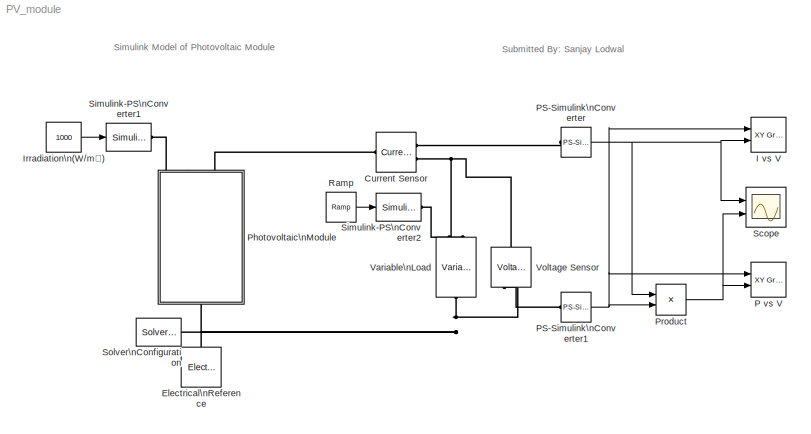
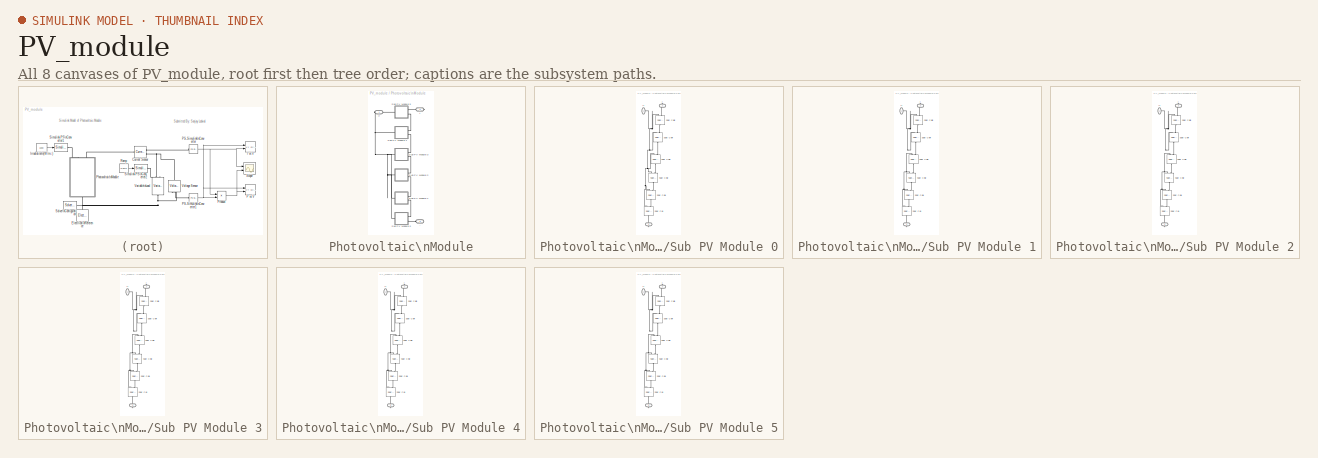
[diagram: thumbnail index - all 8 canvases of the model, root first then tree order]
MODEL PV_module
KIND model
BLOCK [Reference] Current Sensor  REF=fl_lib/Electrical/Electrical Sensors/Current Sensor
  ClassName = current
  ComponentPath = foundation.electrical.sensors.current
  ComponentVariantNames = current
  ComponentVariants = foundation.electrical.sensors.current
  LocalVarDescs = |i1|v1
  LocalVarLogging = [0 0]
  LocalVarNames = |i1|v1
  Ports = [0, 0, 0, 0, 0, 1, 2]
  SID = 226
  SchemaVersion = 1
  SourceBlock = fl_lib/Electrical/Electrical Sensors/Current Sensor
  SourceFile = foundation.electrical.sensors.current
  SourceProductBaseCode = SS
  SourceProductName = Simscape
  SourceType = Current Sensor
  i1_Log = off
  v1_Log = off
BLOCK [Reference] Electrical\nReference  REF=fl_lib/Electrical/Electrical Elements/Electrical Reference
  ClassName = reference
  ComponentPath = foundation.electrical.elements.reference
  ComponentVariantNames = reference
  ComponentVariants = foundation.electrical.elements.reference
  LocalVarDescs = |i
  LocalVarLogging = 0
  LocalVarNames = |i
  Ports = [0, 0, 0, 0, 0, 1]
  SID = 11
  SchemaVersion = 1
  SourceBlock = fl_lib/Electrical/Electrical Elements/Electrical Reference
  SourceFile = foundation.electrical.elements.reference
  SourceProductBaseCode = SS
  SourceProductName = Simscape
  SourceType = Electrical Reference
  i_Log = off
BLOCK [Reference] I vs V  REF=simulink/Sinks/XY Graph
  Ports = [2]
  SID = 365
  SourceBlock = simulink/Sinks/XY Graph
  SourceProductBaseCode = SL
  SourceProductName = Simulink
  SourceType = XY scope.
  st = -1
  xmax = 25
  xmin = 0
  ymax = 9
  ymin = 0
BLOCK [Constant] Irradiation\n(W//m²)
  SID = 222
  Value = 1000
BLOCK [Reference] P vs V  REF=simulink/Sinks/XY Graph
  Ports = [2]
  SID = 366
  SourceBlock = simulink/Sinks/XY Graph
  SourceProductBaseCode = SL
  SourceProductName = Simulink
  SourceType = XY scope.
  st = -1
  xmax = 25
  xmin = 0
  ymax = 165
  ymin = 0
BLOCK [Reference] PS-Simulink\nConverter  REF=nesl_utility/PS-Simulink\nConverter
  AffineConversion = off
  Frequencies = []
  LeftPortType = input
  PhysicalDomain = network_engine_domain
  Ports = [0, 1, 0, 0, 0, 1]
  PseudoPeriodic = off
  RightPortType = output
  SID = 3
  SourceBlock = nesl_utility/PS-Simulink\nConverter
  SourceProductBaseCode = SS
  SourceProductName = Simscape
  SourceType = PS-Simulink\nConverter
  SubClassName = ps_output
  Unit = 1
BLOCK [Reference] PS-Simulink\nConverter1  REF=nesl_utility/PS-Simulink\nConverter
  AffineConversion = off
  Frequencies = []
  LeftPortType = input
  PhysicalDomain = network_engine_domain
  Ports = [0, 1, 0, 0, 0, 1]
  PseudoPeriodic = off
  RightPortType = output
  SID = 228
  SourceBlock = nesl_utility/PS-Simulink\nConverter
  SourceProductBaseCode = SS
  SourceProductName = Simscape
  SourceType = PS-Simulink\nConverter
  SubClassName = ps_output
  Unit = 1
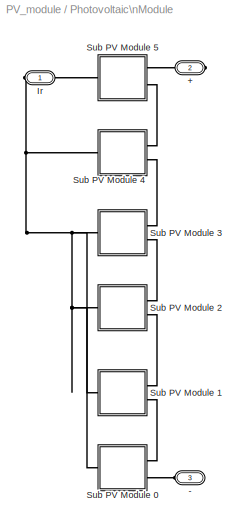
BLOCK [SubSystem] Photovoltaic\nModule
  Ports = [0, 0, 0, 0, 0, 1, 2]
  RequestExecContextInheritance = off
  SID = 234
BLOCK [PMIOPort] Photovoltaic\nModule/+
  Port = 2
  SID = 295
  Side = Right
BLOCK [PMIOPort] Photovoltaic\nModule/-
  Port = 3
  SID = 297
  Side = Left
BLOCK [PMIOPort] Photovoltaic\nModule/Ir
  SID = 296
  Side = Right
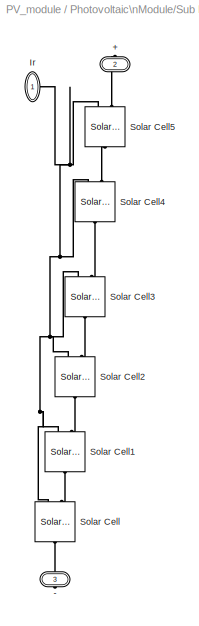
BLOCK [SubSystem] Photovoltaic\nModule/Sub PV Module 0
  Ports = [0, 0, 0, 0, 0, 1, 2]
  RequestExecContextInheritance = off
  SID = 298
BLOCK [PMIOPort] Photovoltaic\nModule/Sub PV Module 0/+
  Port = 2
  SID = 306
  Side = Right
BLOCK [PMIOPort] Photovoltaic\nModule/Sub PV Module 0/-
  Port = 3
  SID = 307
  Side = Right
BLOCK [PMIOPort] Photovoltaic\nModule/Sub PV Module 0/Ir
  SID = 305
  Side = Left
BLOCK [Reference] Photovoltaic\nModule/Sub PV Module 0/Solar Cell  REF=elec_lib/Sources/Solar Cell
  ClassName = Simscape variant
  ComponentPath = elec.sources.solar_cell
  ComponentVariantNames = No thermal port, Show thermal port
  ComponentVariants = elec.sources.solar_cell, elec.sources.solar_cell_thermal
  EG = 1.11
  EG_unit = eV
  Iph = 7.34
  Iph_unit = A
  Ir0 = Ir0
  Ir0_unit = W/m^2
  Is = 1e-6
  Is2 = 0
  Is2_unit = A
  Is_unit = A
  Isc = Isc
  Isc_unit = A
  LocalVarLogging = []
  N2 = 2
  N2_unit = 1
  Ports = [0, 0, 0, 0, 0, 2, 1]
  Rp = Inf
  Rp_unit = Ohm
  Rs = Rs/36
  Rs_unit = Ohm
  SID = 299
  SchemaVersion = 1
  SourceBlock = elec_lib/Sources/Solar Cell
  SourceFile = elec.sources.solar_cell
  SourceProductBaseCode = PS
  SourceProductName = Simscape Electrical
  SourceType = Solar Cell
  TFIXED = 25
  TFIXED_unit = C
  TIPH1 = 0
  TIPH1_unit = 1/K
  TRP1 = 0
  TRP1_unit = 1
  TRS1 = 0
  TRS1_unit = 1
  TXIS1 = 3
  TXIS1_unit = 1
  TXIS2 = 3
  TXIS2_unit = 1
  Tmeas = 25
  Tmeas_unit = C
  Voc = Voc/36
  Voc_unit = V
  ec = n
  ec_unit = 1
  initial_temperature = 25
  initial_temperature_unit = C
  prm = 1
  prm_unit = 1
  thermal_mass = 100
  thermal_mass_unit = J/K
BLOCK [Reference] Photovoltaic\nModule/Sub PV Module 0/Solar Cell1  REF=elec_lib/Sources/Solar Cell
  ClassName = Simscape variant
  ComponentPath = elec.sources.solar_cell
  ComponentVariantNames = No thermal port, Show thermal port
  ComponentVariants = elec.sources.solar_cell, elec.sources.solar_cell_thermal
  EG = 1.11
  EG_unit = eV
  Iph = 7.34
  Iph_unit = A
  Ir0 = Ir0
  Ir0_unit = W/m^2
  Is = 1e-6
  Is2 = 0
  Is2_unit = A
  Is_unit = A
  Isc = Isc
  Isc_unit = A
  LocalVarLogging = []
  N2 = 2
  N2_unit = 1
  Ports = [0, 0, 0, 0, 0, 2, 1]
  Rp = Inf
  Rp_unit = Ohm
  Rs = Rs/36
  Rs_unit = Ohm
  SID = 308
  SchemaVersion = 1
  SourceBlock = elec_lib/Sources/Solar Cell
  SourceFile = elec.sources.solar_cell
  SourceProductBaseCode = PS
  SourceProductName = Simscape Electrical
  SourceType = Solar Cell
  TFIXED = 25
  TFIXED_unit = C
  TIPH1 = 0
  TIPH1_unit = 1/K
  TRP1 = 0
  TRP1_unit = 1
  TRS1 = 0
  TRS1_unit = 1
  TXIS1 = 3
  TXIS1_unit = 1
  TXIS2 = 3
  TXIS2_unit = 1
  Tmeas = 25
  Tmeas_unit = C
  Voc = Voc/36
  Voc_unit = V
  ec = n
  ec_unit = 1
  initial_temperature = 25
  initial_temperature_unit = C
  prm = 1
  prm_unit = 1
  thermal_mass = 100
  thermal_mass_unit = J/K
BLOCK [Reference] Photovoltaic\nModule/Sub PV Module 0/Solar Cell2  REF=elec_lib/Sources/Solar Cell
  ClassName = Simscape variant
  ComponentPath = elec.sources.solar_cell
  ComponentVariantNames = No thermal port, Show thermal port
  ComponentVariants = elec.sources.solar_cell, elec.sources.solar_cell_thermal
  EG = 1.11
  EG_unit = eV
  Iph = 7.34
  Iph_unit = A
  Ir0 = Ir0
  Ir0_unit = W/m^2
  Is = 1e-6
  Is2 = 0
  Is2_unit = A
  Is_unit = A
  Isc = Isc
  Isc_unit = A
  LocalVarLogging = []
  N2 = 2
  N2_unit = 1
  Ports = [0, 0, 0, 0, 0, 2, 1]
  Rp = Inf
  Rp_unit = Ohm
  Rs = Rs/36
  Rs_unit = Ohm
  SID = 310
  SchemaVersion = 1
  SourceBlock = elec_lib/Sources/Solar Cell
  SourceFile = elec.sources.solar_cell
  SourceProductBaseCode = PS
  SourceProductName = Simscape Electrical
  SourceType = Solar Cell
  TFIXED = 25
  TFIXED_unit = C
  TIPH1 = 0
  TIPH1_unit = 1/K
  TRP1 = 0
  TRP1_unit = 1
  TRS1 = 0
  TRS1_unit = 1
  TXIS1 = 3
  TXIS1_unit = 1
  TXIS2 = 3
  TXIS2_unit = 1
  Tmeas = 25
  Tmeas_unit = C
  Voc = Voc/36
  Voc_unit = V
  ec = n
  ec_unit = 1
  initial_temperature = 25
  initial_temperature_unit = C
  prm = 1
  prm_unit = 1
  thermal_mass = 100
  thermal_mass_unit = J/K
BLOCK [Reference] Photovoltaic\nModule/Sub PV Module 0/Solar Cell3  REF=elec_lib/Sources/Solar Cell
  ClassName = Simscape variant
  ComponentPath = elec.sources.solar_cell
  ComponentVariantNames = No thermal port, Show thermal port
  ComponentVariants = elec.sources.solar_cell, elec.sources.solar_cell_thermal
  EG = 1.11
  EG_unit = eV
  Iph = 7.34
  Iph_unit = A
  Ir0 = Ir0
  Ir0_unit = W/m^2
  Is = 1e-6
  Is2 = 0
  Is2_unit = A
  Is_unit = A
  Isc = Isc
  Isc_unit = A
  LocalVarLogging = []
  N2 = 2
  N2_unit = 1
  Ports = [0, 0, 0, 0, 0, 2, 1]
  Rp = Inf
  Rp_unit = Ohm
  Rs = Rs/36
  Rs_unit = Ohm
  SID = 311
  SchemaVersion = 1
  SourceBlock = elec_lib/Sources/Solar Cell
  SourceFile = elec.sources.solar_cell
  SourceProductBaseCode = PS
  SourceProductName = Simscape Electrical
  SourceType = Solar Cell
  TFIXED = 25
  TFIXED_unit = C
  TIPH1 = 0
  TIPH1_unit = 1/K
  TRP1 = 0
  TRP1_unit = 1
  TRS1 = 0
  TRS1_unit = 1
  TXIS1 = 3
  TXIS1_unit = 1
  TXIS2 = 3
  TXIS2_unit = 1
  Tmeas = 25
  Tmeas_unit = C
  Voc = Voc/36
  Voc_unit = V
  ec = n
  ec_unit = 1
  initial_temperature = 25
  initial_temperature_unit = C
  prm = 1
  prm_unit = 1
  thermal_mass = 100
  thermal_mass_unit = J/K
BLOCK [Reference] Photovoltaic\nModule/Sub PV Module 0/Solar Cell4  REF=elec_lib/Sources/Solar Cell
  ClassName = Simscape variant
  ComponentPath = elec.sources.solar_cell
  ComponentVariantNames = No thermal port, Show thermal port
  ComponentVariants = elec.sources.solar_cell, elec.sources.solar_cell_thermal
  EG = 1.11
  EG_unit = eV
  Iph = 7.34
  Iph_unit = A
  Ir0 = Ir0
  Ir0_unit = W/m^2
  Is = 1e-6
  Is2 = 0
  Is2_unit = A
  Is_unit = A
  Isc = Isc
  Isc_unit = A
  LocalVarLogging = []
  N2 = 2
  N2_unit = 1
  Ports = [0, 0, 0, 0, 0, 2, 1]
  Rp = Inf
  Rp_unit = Ohm
  Rs = Rs/36
  Rs_unit = Ohm
  SID = 312
  SchemaVersion = 1
  SourceBlock = elec_lib/Sources/Solar Cell
  SourceFile = elec.sources.solar_cell
  SourceProductBaseCode = PS
  SourceProductName = Simscape Electrical
  SourceType = Solar Cell
  TFIXED = 25
  TFIXED_unit = C
  TIPH1 = 0
  TIPH1_unit = 1/K
  TRP1 = 0
  TRP1_unit = 1
  TRS1 = 0
  TRS1_unit = 1
  TXIS1 = 3
  TXIS1_unit = 1
  TXIS2 = 3
  TXIS2_unit = 1
  Tmeas = 25
  Tmeas_unit = C
  Voc = Voc/36
  Voc_unit = V
  ec = n
  ec_unit = 1
  initial_temperature = 25
  initial_temperature_unit = C
  prm = 1
  prm_unit = 1
  thermal_mass = 100
  thermal_mass_unit = J/K
BLOCK [Reference] Photovoltaic\nModule/Sub PV Module 0/Solar Cell5  REF=elec_lib/Sources/Solar Cell
  ClassName = Simscape variant
  ComponentPath = elec.sources.solar_cell
  ComponentVariantNames = No thermal port, Show thermal port
  ComponentVariants = elec.sources.solar_cell, elec.sources.solar_cell_thermal
  EG = 1.11
  EG_unit = eV
  Iph = 7.34
  Iph_unit = A
  Ir0 = Ir0
  Ir0_unit = W/m^2
  Is = 1e-6
  Is2 = 0
  Is2_unit = A
  Is_unit = A
  Isc = Isc
  Isc_unit = A
  LocalVarLogging = []
  N2 = 2
  N2_unit = 1
  Ports = [0, 0, 0, 0, 0, 2, 1]
  Rp = Inf
  Rp_unit = Ohm
  Rs = Rs/36
  Rs_unit = Ohm
  SID = 313
  SchemaVersion = 1
  SourceBlock = elec_lib/Sources/Solar Cell
  SourceFile = elec.sources.solar_cell
  SourceProductBaseCode = PS
  SourceProductName = Simscape Electrical
  SourceType = Solar Cell
  TFIXED = 25
  TFIXED_unit = C
  TIPH1 = 0
  TIPH1_unit = 1/K
  TRP1 = 0
  TRP1_unit = 1
  TRS1 = 0
  TRS1_unit = 1
  TXIS1 = 3
  TXIS1_unit = 1
  TXIS2 = 3
  TXIS2_unit = 1
  Tmeas = 25
  Tmeas_unit = C
  Voc = Voc/36
  Voc_unit = V
  ec = n
  ec_unit = 1
  initial_temperature = 25
  initial_temperature_unit = C
  prm = 1
  prm_unit = 1
  thermal_mass = 100
  thermal_mass_unit = J/K
BLOCK [SubSystem] Photovoltaic\nModule/Sub PV Module 1
  Ports = [0, 0, 0, 0, 0, 1, 2]
  RequestExecContextInheritance = off
  SID = 315
BLOCK [PMIOPort] Photovoltaic\nModule/Sub PV Module 1/+
  Port = 2
  SID = 323
  Side = Right
BLOCK [PMIOPort] Photovoltaic\nModule/Sub PV Module 1/-
  Port = 3
  SID = 324
  Side = Right
BLOCK [PMIOPort] Photovoltaic\nModule/Sub PV Module 1/Ir
  SID = 322
  Side = Left
BLOCK [Reference] Photovoltaic\nModule/Sub PV Module 1/Solar Cell  REF=elec_lib/Sources/Solar Cell
  ClassName = Simscape variant
  ComponentPath = elec.sources.solar_cell
  ComponentVariantNames = No thermal port, Show thermal port
  ComponentVariants = elec.sources.solar_cell, elec.sources.solar_cell_thermal
  EG = 1.11
  EG_unit = eV
  Iph = 7.34
  Iph_unit = A
  Ir0 = Ir0
  Ir0_unit = W/m^2
  Is = 1e-6
  Is2 = 0
  Is2_unit = A
  Is_unit = A
  Isc = Isc
  Isc_unit = A
  LocalVarLogging = []
  N2 = 2
  N2_unit = 1
  Ports = [0, 0, 0, 0, 0, 2, 1]
  Rp = Inf
  Rp_unit = Ohm
  Rs = Rs/36
  Rs_unit = Ohm
  SID = 316
  SchemaVersion = 1
  SourceBlock = elec_lib/Sources/Solar Cell
  SourceFile = elec.sources.solar_cell
  SourceProductBaseCode = PS
  SourceProductName = Simscape Electrical
  SourceType = Solar Cell
  TFIXED = 25
  TFIXED_unit = C
  TIPH1 = 0
  TIPH1_unit = 1/K
  TRP1 = 0
  TRP1_unit = 1
  TRS1 = 0
  TRS1_unit = 1
  TXIS1 = 3
  TXIS1_unit = 1
  TXIS2 = 3
  TXIS2_unit = 1
  Tmeas = 25
  Tmeas_unit = C
  Voc = Voc/36
  Voc_unit = V
  ec = n
  ec_unit = 1
  initial_temperature = 25
  initial_temperature_unit = C
  prm = 1
  prm_unit = 1
  thermal_mass = 100
  thermal_mass_unit = J/K
BLOCK [Reference] Photovoltaic\nModule/Sub PV Module 1/Solar Cell1  REF=elec_lib/Sources/Solar Cell
  ClassName = Simscape variant
  ComponentPath = elec.sources.solar_cell
  ComponentVariantNames = No thermal port, Show thermal port
  ComponentVariants = elec.sources.solar_cell, elec.sources.solar_cell_thermal
  EG = 1.11
  EG_unit = eV
  Iph = 7.34
  Iph_unit = A
  Ir0 = Ir0
  Ir0_unit = W/m^2
  Is = 1e-6
  Is2 = 0
  Is2_unit = A
  Is_unit = A
  Isc = Isc
  Isc_unit = A
  LocalVarLogging = []
  N2 = 2
  N2_unit = 1
  Ports = [0, 0, 0, 0, 0, 2, 1]
  Rp = Inf
  Rp_unit = Ohm
  Rs = Rs/36
  Rs_unit = Ohm
  SID = 317
  SchemaVersion = 1
  SourceBlock = elec_lib/Sources/Solar Cell
  SourceFile = elec.sources.solar_cell
  SourceProductBaseCode = PS
  SourceProductName = Simscape Electrical
  SourceType = Solar Cell
  TFIXED = 25
  TFIXED_unit = C
  TIPH1 = 0
  TIPH1_unit = 1/K
  TRP1 = 0
  TRP1_unit = 1
  TRS1 = 0
  TRS1_unit = 1
  TXIS1 = 3
  TXIS1_unit = 1
  TXIS2 = 3
  TXIS2_unit = 1
  Tmeas = 25
  Tmeas_unit = C
  Voc = Voc/36
  Voc_unit = V
  ec = n
  ec_unit = 1
  initial_temperature = 25
  initial_temperature_unit = C
  prm = 1
  prm_unit = 1
  thermal_mass = 100
  thermal_mass_unit = J/K
BLOCK [Reference] Photovoltaic\nModule/Sub PV Module 1/Solar Cell2  REF=elec_lib/Sources/Solar Cell
  ClassName = Simscape variant
  ComponentPath = elec.sources.solar_cell
  ComponentVariantNames = No thermal port, Show thermal port
  ComponentVariants = elec.sources.solar_cell, elec.sources.solar_cell_thermal
  EG = 1.11
  EG_unit = eV
  Iph = 7.34
  Iph_unit = A
  Ir0 = Ir0
  Ir0_unit = W/m^2
  Is = 1e-6
  Is2 = 0
  Is2_unit = A
  Is_unit = A
  Isc = Isc
  Isc_unit = A
  LocalVarLogging = []
  N2 = 2
  N2_unit = 1
  Ports = [0, 0, 0, 0, 0, 2, 1]
  Rp = Inf
  Rp_unit = Ohm
  Rs = Rs/36
  Rs_unit = Ohm
  SID = 318
  SchemaVersion = 1
  SourceBlock = elec_lib/Sources/Solar Cell
  SourceFile = elec.sources.solar_cell
  SourceProductBaseCode = PS
  SourceProductName = Simscape Electrical
  SourceType = Solar Cell
  TFIXED = 25
  TFIXED_unit = C
  TIPH1 = 0
  TIPH1_unit = 1/K
  TRP1 = 0
  TRP1_unit = 1
  TRS1 = 0
  TRS1_unit = 1
  TXIS1 = 3
  TXIS1_unit = 1
  TXIS2 = 3
  TXIS2_unit = 1
  Tmeas = 25
  Tmeas_unit = C
  Voc = Voc/36
  Voc_unit = V
  ec = n
  ec_unit = 1
  initial_temperature = 25
  initial_temperature_unit = C
  prm = 1
  prm_unit = 1
  thermal_mass = 100
  thermal_mass_unit = J/K
BLOCK [Reference] Photovoltaic\nModule/Sub PV Module 1/Solar Cell3  REF=elec_lib/Sources/Solar Cell
  ClassName = Simscape variant
  ComponentPath = elec.sources.solar_cell
  ComponentVariantNames = No thermal port, Show thermal port
  ComponentVariants = elec.sources.solar_cell, elec.sources.solar_cell_thermal
  EG = 1.11
  EG_unit = eV
  Iph = 7.34
  Iph_unit = A
  Ir0 = Ir0
  Ir0_unit = W/m^2
  Is = 1e-6
  Is2 = 0
  Is2_unit = A
  Is_unit = A
  Isc = Isc
  Isc_unit = A
  LocalVarLogging = []
  N2 = 2
  N2_unit = 1
  Ports = [0, 0, 0, 0, 0, 2, 1]
  Rp = Inf
  Rp_unit = Ohm
  Rs = Rs/36
  Rs_unit = Ohm
  SID = 319
  SchemaVersion = 1
  SourceBlock = elec_lib/Sources/Solar Cell
  SourceFile = elec.sources.solar_cell
  SourceProductBaseCode = PS
  SourceProductName = Simscape Electrical
  SourceType = Solar Cell
  TFIXED = 25
  TFIXED_unit = C
  TIPH1 = 0
  TIPH1_unit = 1/K
  TRP1 = 0
  TRP1_unit = 1
  TRS1 = 0
  TRS1_unit = 1
  TXIS1 = 3
  TXIS1_unit = 1
  TXIS2 = 3
  TXIS2_unit = 1
  Tmeas = 25
  Tmeas_unit = C
  Voc = Voc/36
  Voc_unit = V
  ec = n
  ec_unit = 1
  initial_temperature = 25
  initial_temperature_unit = C
  prm = 1
  prm_unit = 1
  thermal_mass = 100
  thermal_mass_unit = J/K
BLOCK [Reference] Photovoltaic\nModule/Sub PV Module 1/Solar Cell4  REF=elec_lib/Sources/Solar Cell
  ClassName = Simscape variant
  ComponentPath = elec.sources.solar_cell
  ComponentVariantNames = No thermal port, Show thermal port
  ComponentVariants = elec.sources.solar_cell, elec.sources.solar_cell_thermal
  EG = 1.11
  EG_unit = eV
  Iph = 7.34
  Iph_unit = A
  Ir0 = Ir0
  Ir0_unit = W/m^2
  Is = 1e-6
  Is2 = 0
  Is2_unit = A
  Is_unit = A
  Isc = Isc
  Isc_unit = A
  LocalVarLogging = []
  N2 = 2
  N2_unit = 1
  Ports = [0, 0, 0, 0, 0, 2, 1]
  Rp = Inf
  Rp_unit = Ohm
  Rs = Rs/36
  Rs_unit = Ohm
  SID = 320
  SchemaVersion = 1
  SourceBlock = elec_lib/Sources/Solar Cell
  SourceFile = elec.sources.solar_cell
  SourceProductBaseCode = PS
  SourceProductName = Simscape Electrical
  SourceType = Solar Cell
  TFIXED = 25
  TFIXED_unit = C
  TIPH1 = 0
  TIPH1_unit = 1/K
  TRP1 = 0
  TRP1_unit = 1
  TRS1 = 0
  TRS1_unit = 1
  TXIS1 = 3
  TXIS1_unit = 1
  TXIS2 = 3
  TXIS2_unit = 1
  Tmeas = 25
  Tmeas_unit = C
  Voc = Voc/36
  Voc_unit = V
  ec = n
  ec_unit = 1
  initial_temperature = 25
  initial_temperature_unit = C
  prm = 1
  prm_unit = 1
  thermal_mass = 100
  thermal_mass_unit = J/K
BLOCK [Reference] Photovoltaic\nModule/Sub PV Module 1/Solar Cell5  REF=elec_lib/Sources/Solar Cell
  ClassName = Simscape variant
  ComponentPath = elec.sources.solar_cell
  ComponentVariantNames = No thermal port, Show thermal port
  ComponentVariants = elec.sources.solar_cell, elec.sources.solar_cell_thermal
  EG = 1.11
  EG_unit = eV
  Iph = 7.34
  Iph_unit = A
  Ir0 = Ir0
  Ir0_unit = W/m^2
  Is = 1e-6
  Is2 = 0
  Is2_unit = A
  Is_unit = A
  Isc = Isc
  Isc_unit = A
  LocalVarLogging = []
  N2 = 2
  N2_unit = 1
  Ports = [0, 0, 0, 0, 0, 2, 1]
  Rp = Inf
  Rp_unit = Ohm
  Rs = Rs/36
  Rs_unit = Ohm
  SID = 321
  SchemaVersion = 1
  SourceBlock = elec_lib/Sources/Solar Cell
  SourceFile = elec.sources.solar_cell
  SourceProductBaseCode = PS
  SourceProductName = Simscape Electrical
  SourceType = Solar Cell
  TFIXED = 25
  TFIXED_unit = C
  TIPH1 = 0
  TIPH1_unit = 1/K
  TRP1 = 0
  TRP1_unit = 1
  TRS1 = 0
  TRS1_unit = 1
  TXIS1 = 3
  TXIS1_unit = 1
  TXIS2 = 3
  TXIS2_unit = 1
  Tmeas = 25
  Tmeas_unit = C
  Voc = Voc/36
  Voc_unit = V
  ec = n
  ec_unit = 1
  initial_temperature = 25
  initial_temperature_unit = C
  prm = 1
  prm_unit = 1
  thermal_mass = 100
  thermal_mass_unit = J/K
BLOCK [SubSystem] Photovoltaic\nModule/Sub PV Module 2
  Ports = [0, 0, 0, 0, 0, 1, 2]
  RequestExecContextInheritance = off
  SID = 325
BLOCK [PMIOPort] Photovoltaic\nModule/Sub PV Module 2/+
  Port = 2
  SID = 333
  Side = Right
BLOCK [PMIOPort] Photovoltaic\nModule/Sub PV Module 2/-
  Port = 3
  SID = 334
  Side = Right
BLOCK [PMIOPort] Photovoltaic\nModule/Sub PV Module 2/Ir
  SID = 332
  Side = Left
BLOCK [Reference] Photovoltaic\nModule/Sub PV Module 2/Solar Cell  REF=elec_lib/Sources/Solar Cell
  ClassName = Simscape variant
  ComponentPath = elec.sources.solar_cell
  ComponentVariantNames = No thermal port, Show thermal port
  ComponentVariants = elec.sources.solar_cell, elec.sources.solar_cell_thermal
  EG = 1.11
  EG_unit = eV
  Iph = 7.34
  Iph_unit = A
  Ir0 = Ir0
  Ir0_unit = W/m^2
  Is = 1e-6
  Is2 = 0
  Is2_unit = A
  Is_unit = A
  Isc = Isc
  Isc_unit = A
  LocalVarLogging = []
  N2 = 2
  N2_unit = 1
  Ports = [0, 0, 0, 0, 0, 2, 1]
  Rp = Inf
  Rp_unit = Ohm
  Rs = Rs/36
  Rs_unit = Ohm
  SID = 326
  SchemaVersion = 1
  SourceBlock = elec_lib/Sources/Solar Cell
  SourceFile = elec.sources.solar_cell
  SourceProductBaseCode = PS
  SourceProductName = Simscape Electrical
  SourceType = Solar Cell
  TFIXED = 25
  TFIXED_unit = C
  TIPH1 = 0
  TIPH1_unit = 1/K
  TRP1 = 0
  TRP1_unit = 1
  TRS1 = 0
  TRS1_unit = 1
  TXIS1 = 3
  TXIS1_unit = 1
  TXIS2 = 3
  TXIS2_unit = 1
  Tmeas = 25
  Tmeas_unit = C
  Voc = Voc/36
  Voc_unit = V
  ec = n
  ec_unit = 1
  initial_temperature = 25
  initial_temperature_unit = C
  prm = 1
  prm_unit = 1
  thermal_mass = 100
  thermal_mass_unit = J/K
BLOCK [Reference] Photovoltaic\nModule/Sub PV Module 2/Solar Cell1  REF=elec_lib/Sources/Solar Cell
  ClassName = Simscape variant
  ComponentPath = elec.sources.solar_cell
  ComponentVariantNames = No thermal port, Show thermal port
  ComponentVariants = elec.sources.solar_cell, elec.sources.solar_cell_thermal
  EG = 1.11
  EG_unit = eV
  Iph = 7.34
  Iph_unit = A
  Ir0 = Ir0
  Ir0_unit = W/m^2
  Is = 1e-6
  Is2 = 0
  Is2_unit = A
  Is_unit = A
  Isc = Isc
  Isc_unit = A
  LocalVarLogging = []
  N2 = 2
  N2_unit = 1
  Ports = [0, 0, 0, 0, 0, 2, 1]
  Rp = Inf
  Rp_unit = Ohm
  Rs = Rs/36
  Rs_unit = Ohm
  SID = 327
  SchemaVersion = 1
  SourceBlock = elec_lib/Sources/Solar Cell
  SourceFile = elec.sources.solar_cell
  SourceProductBaseCode = PS
  SourceProductName = Simscape Electrical
  SourceType = Solar Cell
  TFIXED = 25
  TFIXED_unit = C
  TIPH1 = 0
  TIPH1_unit = 1/K
  TRP1 = 0
  TRP1_unit = 1
  TRS1 = 0
  TRS1_unit = 1
  TXIS1 = 3
  TXIS1_unit = 1
  TXIS2 = 3
  TXIS2_unit = 1
  Tmeas = 25
  Tmeas_unit = C
  Voc = Voc/36
  Voc_unit = V
  ec = n
  ec_unit = 1
  initial_temperature = 25
  initial_temperature_unit = C
  prm = 1
  prm_unit = 1
  thermal_mass = 100
  thermal_mass_unit = J/K
BLOCK [Reference] Photovoltaic\nModule/Sub PV Module 2/Solar Cell2  REF=elec_lib/Sources/Solar Cell
  ClassName = Simscape variant
  ComponentPath = elec.sources.solar_cell
  ComponentVariantNames = No thermal port, Show thermal port
  ComponentVariants = elec.sources.solar_cell, elec.sources.solar_cell_thermal
  EG = 1.11
  EG_unit = eV
  Iph = 7.34
  Iph_unit = A
  Ir0 = Ir0
  Ir0_unit = W/m^2
  Is = 1e-6
  Is2 = 0
  Is2_unit = A
  Is_unit = A
  Isc = Isc
  Isc_unit = A
  LocalVarLogging = []
  N2 = 2
  N2_unit = 1
  Ports = [0, 0, 0, 0, 0, 2, 1]
  Rp = Inf
  Rp_unit = Ohm
  Rs = Rs/36
  Rs_unit = Ohm
  SID = 328
  SchemaVersion = 1
  SourceBlock = elec_lib/Sources/Solar Cell
  SourceFile = elec.sources.solar_cell
  SourceProductBaseCode = PS
  SourceProductName = Simscape Electrical
  SourceType = Solar Cell
  TFIXED = 25
  TFIXED_unit = C
  TIPH1 = 0
  TIPH1_unit = 1/K
  TRP1 = 0
  TRP1_unit = 1
  TRS1 = 0
  TRS1_unit = 1
  TXIS1 = 3
  TXIS1_unit = 1
  TXIS2 = 3
  TXIS2_unit = 1
  Tmeas = 25
  Tmeas_unit = C
  Voc = Voc/36
  Voc_unit = V
  ec = n
  ec_unit = 1
  initial_temperature = 25
  initial_temperature_unit = C
  prm = 1
  prm_unit = 1
  thermal_mass = 100
  thermal_mass_unit = J/K
BLOCK [Reference] Photovoltaic\nModule/Sub PV Module 2/Solar Cell3  REF=elec_lib/Sources/Solar Cell
  ClassName = Simscape variant
  ComponentPath = elec.sources.solar_cell
  ComponentVariantNames = No thermal port, Show thermal port
  ComponentVariants = elec.sources.solar_cell, elec.sources.solar_cell_thermal
  EG = 1.11
  EG_unit = eV
  Iph = 7.34
  Iph_unit = A
  Ir0 = Ir0
  Ir0_unit = W/m^2
  Is = 1e-6
  Is2 = 0
  Is2_unit = A
  Is_unit = A
  Isc = Isc
  Isc_unit = A
  LocalVarLogging = []
  N2 = 2
  N2_unit = 1
  Ports = [0, 0, 0, 0, 0, 2, 1]
  Rp = Inf
  Rp_unit = Ohm
  Rs = Rs/36
  Rs_unit = Ohm
  SID = 329
  SchemaVersion = 1
  SourceBlock = elec_lib/Sources/Solar Cell
  SourceFile = elec.sources.solar_cell
  SourceProductBaseCode = PS
  SourceProductName = Simscape Electrical
  SourceType = Solar Cell
  TFIXED = 25
  TFIXED_unit = C
  TIPH1 = 0
  TIPH1_unit = 1/K
  TRP1 = 0
  TRP1_unit = 1
  TRS1 = 0
  TRS1_unit = 1
  TXIS1 = 3
  TXIS1_unit = 1
  TXIS2 = 3
  TXIS2_unit = 1
  Tmeas = 25
  Tmeas_unit = C
  Voc = Voc/36
  Voc_unit = V
  ec = n
  ec_unit = 1
  initial_temperature = 25
  initial_temperature_unit = C
  prm = 1
  prm_unit = 1
  thermal_mass = 100
  thermal_mass_unit = J/K
BLOCK [Reference] Photovoltaic\nModule/Sub PV Module 2/Solar Cell4  REF=elec_lib/Sources/Solar Cell
  ClassName = Simscape variant
  ComponentPath = elec.sources.solar_cell
  ComponentVariantNames = No thermal port, Show thermal port
  ComponentVariants = elec.sources.solar_cell, elec.sources.solar_cell_thermal
  EG = 1.11
  EG_unit = eV
  Iph = 7.34
  Iph_unit = A
  Ir0 = Ir0
  Ir0_unit = W/m^2
  Is = 1e-6
  Is2 = 0
  Is2_unit = A
  Is_unit = A
  Isc = Isc
  Isc_unit = A
  LocalVarLogging = []
  N2 = 2
  N2_unit = 1
  Ports = [0, 0, 0, 0, 0, 2, 1]
  Rp = Inf
  Rp_unit = Ohm
  Rs = Rs/36
  Rs_unit = Ohm
  SID = 330
  SchemaVersion = 1
  SourceBlock = elec_lib/Sources/Solar Cell
  SourceFile = elec.sources.solar_cell
  SourceProductBaseCode = PS
  SourceProductName = Simscape Electrical
  SourceType = Solar Cell
  TFIXED = 25
  TFIXED_unit = C
  TIPH1 = 0
  TIPH1_unit = 1/K
  TRP1 = 0
  TRP1_unit = 1
  TRS1 = 0
  TRS1_unit = 1
  TXIS1 = 3
  TXIS1_unit = 1
  TXIS2 = 3
  TXIS2_unit = 1
  Tmeas = 25
  Tmeas_unit = C
  Voc = Voc/36
  Voc_unit = V
  ec = n
  ec_unit = 1
  initial_temperature = 25
  initial_temperature_unit = C
  prm = 1
  prm_unit = 1
  thermal_mass = 100
  thermal_mass_unit = J/K
BLOCK [Reference] Photovoltaic\nModule/Sub PV Module 2/Solar Cell5  REF=elec_lib/Sources/Solar Cell
  ClassName = Simscape variant
  ComponentPath = elec.sources.solar_cell
  ComponentVariantNames = No thermal port, Show thermal port
  ComponentVariants = elec.sources.solar_cell, elec.sources.solar_cell_thermal
  EG = 1.11
  EG_unit = eV
  Iph = 7.34
  Iph_unit = A
  Ir0 = Ir0
  Ir0_unit = W/m^2
  Is = 1e-6
  Is2 = 0
  Is2_unit = A
  Is_unit = A
  Isc = Isc
  Isc_unit = A
  LocalVarLogging = []
  N2 = 2
  N2_unit = 1
  Ports = [0, 0, 0, 0, 0, 2, 1]
  Rp = Inf
  Rp_unit = Ohm
  Rs = Rs/36
  Rs_unit = Ohm
  SID = 331
  SchemaVersion = 1
  SourceBlock = elec_lib/Sources/Solar Cell
  SourceFile = elec.sources.solar_cell
  SourceProductBaseCode = PS
  SourceProductName = Simscape Electrical
  SourceType = Solar Cell
  TFIXED = 25
  TFIXED_unit = C
  TIPH1 = 0
  TIPH1_unit = 1/K
  TRP1 = 0
  TRP1_unit = 1
  TRS1 = 0
  TRS1_unit = 1
  TXIS1 = 3
  TXIS1_unit = 1
  TXIS2 = 3
  TXIS2_unit = 1
  Tmeas = 25
  Tmeas_unit = C
  Voc = Voc/36
  Voc_unit = V
  ec = n
  ec_unit = 1
  initial_temperature = 25
  initial_temperature_unit = C
  prm = 1
  prm_unit = 1
  thermal_mass = 100
  thermal_mass_unit = J/K
BLOCK [SubSystem] Photovoltaic\nModule/Sub PV Module 3
  Ports = [0, 0, 0, 0, 0, 1, 2]
  RequestExecContextInheritance = off
  SID = 335
BLOCK [PMIOPort] Photovoltaic\nModule/Sub PV Module 3/+
  Port = 2
  SID = 343
  Side = Right
BLOCK [PMIOPort] Photovoltaic\nModule/Sub PV Module 3/-
  Port = 3
  SID = 344
  Side = Right
BLOCK [PMIOPort] Photovoltaic\nModule/Sub PV Module 3/Ir
  SID = 342
  Side = Left
BLOCK [Reference] Photovoltaic\nModule/Sub PV Module 3/Solar Cell  REF=elec_lib/Sources/Solar Cell
  ClassName = Simscape variant
  ComponentPath = elec.sources.solar_cell
  ComponentVariantNames = No thermal port, Show thermal port
  ComponentVariants = elec.sources.solar_cell, elec.sources.solar_cell_thermal
  EG = 1.11
  EG_unit = eV
  Iph = 7.34
  Iph_unit = A
  Ir0 = Ir0
  Ir0_unit = W/m^2
  Is = 1e-6
  Is2 = 0
  Is2_unit = A
  Is_unit = A
  Isc = Isc
  Isc_unit = A
  LocalVarLogging = []
  N2 = 2
  N2_unit = 1
  Ports = [0, 0, 0, 0, 0, 2, 1]
  Rp = Inf
  Rp_unit = Ohm
  Rs = Rs/36
  Rs_unit = Ohm
  SID = 336
  SchemaVersion = 1
  SourceBlock = elec_lib/Sources/Solar Cell
  SourceFile = elec.sources.solar_cell
  SourceProductBaseCode = PS
  SourceProductName = Simscape Electrical
  SourceType = Solar Cell
  TFIXED = 25
  TFIXED_unit = C
  TIPH1 = 0
  TIPH1_unit = 1/K
  TRP1 = 0
  TRP1_unit = 1
  TRS1 = 0
  TRS1_unit = 1
  TXIS1 = 3
  TXIS1_unit = 1
  TXIS2 = 3
  TXIS2_unit = 1
  Tmeas = 25
  Tmeas_unit = C
  Voc = Voc/36
  Voc_unit = V
  ec = n
  ec_unit = 1
  initial_temperature = 25
  initial_temperature_unit = C
  prm = 1
  prm_unit = 1
  thermal_mass = 100
  thermal_mass_unit = J/K
BLOCK [Reference] Photovoltaic\nModule/Sub PV Module 3/Solar Cell1  REF=elec_lib/Sources/Solar Cell
  ClassName = Simscape variant
  ComponentPath = elec.sources.solar_cell
  ComponentVariantNames = No thermal port, Show thermal port
  ComponentVariants = elec.sources.solar_cell, elec.sources.solar_cell_thermal
  EG = 1.11
  EG_unit = eV
  Iph = 7.34
  Iph_unit = A
  Ir0 = Ir0
  Ir0_unit = W/m^2
  Is = 1e-6
  Is2 = 0
  Is2_unit = A
  Is_unit = A
  Isc = Isc
  Isc_unit = A
  LocalVarLogging = []
  N2 = 2
  N2_unit = 1
  Ports = [0, 0, 0, 0, 0, 2, 1]
  Rp = Inf
  Rp_unit = Ohm
  Rs = Rs/36
  Rs_unit = Ohm
  SID = 337
  SchemaVersion = 1
  SourceBlock = elec_lib/Sources/Solar Cell
  SourceFile = elec.sources.solar_cell
  SourceProductBaseCode = PS
  SourceProductName = Simscape Electrical
  SourceType = Solar Cell
  TFIXED = 25
  TFIXED_unit = C
  TIPH1 = 0
  TIPH1_unit = 1/K
  TRP1 = 0
  TRP1_unit = 1
  TRS1 = 0
  TRS1_unit = 1
  TXIS1 = 3
  TXIS1_unit = 1
  TXIS2 = 3
  TXIS2_unit = 1
  Tmeas = 25
  Tmeas_unit = C
  Voc = Voc/36
  Voc_unit = V
  ec = n
  ec_unit = 1
  initial_temperature = 25
  initial_temperature_unit = C
  prm = 1
  prm_unit = 1
  thermal_mass = 100
  thermal_mass_unit = J/K
BLOCK [Reference] Photovoltaic\nModule/Sub PV Module 3/Solar Cell2  REF=elec_lib/Sources/Solar Cell
  ClassName = Simscape variant
  ComponentPath = elec.sources.solar_cell
  ComponentVariantNames = No thermal port, Show thermal port
  ComponentVariants = elec.sources.solar_cell, elec.sources.solar_cell_thermal
  EG = 1.11
  EG_unit = eV
  Iph = 7.34
  Iph_unit = A
  Ir0 = Ir0
  Ir0_unit = W/m^2
  Is = 1e-6
  Is2 = 0
  Is2_unit = A
  Is_unit = A
  Isc = Isc
  Isc_unit = A
  LocalVarLogging = []
  N2 = 2
  N2_unit = 1
  Ports = [0, 0, 0, 0, 0, 2, 1]
  Rp = Inf
  Rp_unit = Ohm
  Rs = Rs/36
  Rs_unit = Ohm
  SID = 338
  SchemaVersion = 1
  SourceBlock = elec_lib/Sources/Solar Cell
  SourceFile = elec.sources.solar_cell
  SourceProductBaseCode = PS
  SourceProductName = Simscape Electrical
  SourceType = Solar Cell
  TFIXED = 25
  TFIXED_unit = C
  TIPH1 = 0
  TIPH1_unit = 1/K
  TRP1 = 0
  TRP1_unit = 1
  TRS1 = 0
  TRS1_unit = 1
  TXIS1 = 3
  TXIS1_unit = 1
  TXIS2 = 3
  TXIS2_unit = 1
  Tmeas = 25
  Tmeas_unit = C
  Voc = Voc/36
  Voc_unit = V
  ec = n
  ec_unit = 1
  initial_temperature = 25
  initial_temperature_unit = C
  prm = 1
  prm_unit = 1
  thermal_mass = 100
  thermal_mass_unit = J/K
BLOCK [Reference] Photovoltaic\nModule/Sub PV Module 3/Solar Cell3  REF=elec_lib/Sources/Solar Cell
  ClassName = Simscape variant
  ComponentPath = elec.sources.solar_cell
  ComponentVariantNames = No thermal port, Show thermal port
  ComponentVariants = elec.sources.solar_cell, elec.sources.solar_cell_thermal
  EG = 1.11
  EG_unit = eV
  Iph = 7.34
  Iph_unit = A
  Ir0 = Ir0
  Ir0_unit = W/m^2
  Is = 1e-6
  Is2 = 0
  Is2_unit = A
  Is_unit = A
  Isc = Isc
  Isc_unit = A
  LocalVarLogging = []
  N2 = 2
  N2_unit = 1
  Ports = [0, 0, 0, 0, 0, 2, 1]
  Rp = Inf
  Rp_unit = Ohm
  Rs = Rs/36
  Rs_unit = Ohm
  SID = 339
  SchemaVersion = 1
  SourceBlock = elec_lib/Sources/Solar Cell
  SourceFile = elec.sources.solar_cell
  SourceProductBaseCode = PS
  SourceProductName = Simscape Electrical
  SourceType = Solar Cell
  TFIXED = 25
  TFIXED_unit = C
  TIPH1 = 0
  TIPH1_unit = 1/K
  TRP1 = 0
  TRP1_unit = 1
  TRS1 = 0
  TRS1_unit = 1
  TXIS1 = 3
  TXIS1_unit = 1
  TXIS2 = 3
  TXIS2_unit = 1
  Tmeas = 25
  Tmeas_unit = C
  Voc = Voc/36
  Voc_unit = V
  ec = n
  ec_unit = 1
  initial_temperature = 25
  initial_temperature_unit = C
  prm = 1
  prm_unit = 1
  thermal_mass = 100
  thermal_mass_unit = J/K
BLOCK [Reference] Photovoltaic\nModule/Sub PV Module 3/Solar Cell4  REF=elec_lib/Sources/Solar Cell
  ClassName = Simscape variant
  ComponentPath = elec.sources.solar_cell
  ComponentVariantNames = No thermal port, Show thermal port
  ComponentVariants = elec.sources.solar_cell, elec.sources.solar_cell_thermal
  EG = 1.11
  EG_unit = eV
  Iph = 7.34
  Iph_unit = A
  Ir0 = Ir0
  Ir0_unit = W/m^2
  Is = 1e-6
  Is2 = 0
  Is2_unit = A
  Is_unit = A
  Isc = Isc
  Isc_unit = A
  LocalVarLogging = []
  N2 = 2
  N2_unit = 1
  Ports = [0, 0, 0, 0, 0, 2, 1]
  Rp = Inf
  Rp_unit = Ohm
  Rs = Rs/36
  Rs_unit = Ohm
  SID = 340
  SchemaVersion = 1
  SourceBlock = elec_lib/Sources/Solar Cell
  SourceFile = elec.sources.solar_cell
  SourceProductBaseCode = PS
  SourceProductName = Simscape Electrical
  SourceType = Solar Cell
  TFIXED = 25
  TFIXED_unit = C
  TIPH1 = 0
  TIPH1_unit = 1/K
  TRP1 = 0
  TRP1_unit = 1
  TRS1 = 0
  TRS1_unit = 1
  TXIS1 = 3
  TXIS1_unit = 1
  TXIS2 = 3
  TXIS2_unit = 1
  Tmeas = 25
  Tmeas_unit = C
  Voc = Voc/36
  Voc_unit = V
  ec = n
  ec_unit = 1
  initial_temperature = 25
  initial_temperature_unit = C
  prm = 1
  prm_unit = 1
  thermal_mass = 100
  thermal_mass_unit = J/K
BLOCK [Reference] Photovoltaic\nModule/Sub PV Module 3/Solar Cell5  REF=elec_lib/Sources/Solar Cell
  ClassName = Simscape variant
  ComponentPath = elec.sources.solar_cell
  ComponentVariantNames = No thermal port, Show thermal port
  ComponentVariants = elec.sources.solar_cell, elec.sources.solar_cell_thermal
  EG = 1.11
  EG_unit = eV
  Iph = 7.34
  Iph_unit = A
  Ir0 = Ir0
  Ir0_unit = W/m^2
  Is = 1e-6
  Is2 = 0
  Is2_unit = A
  Is_unit = A
  Isc = Isc
  Isc_unit = A
  LocalVarLogging = []
  N2 = 2
  N2_unit = 1
  Ports = [0, 0, 0, 0, 0, 2, 1]
  Rp = Inf
  Rp_unit = Ohm
  Rs = Rs/36
  Rs_unit = Ohm
  SID = 341
  SchemaVersion = 1
  SourceBlock = elec_lib/Sources/Solar Cell
  SourceFile = elec.sources.solar_cell
  SourceProductBaseCode = PS
  SourceProductName = Simscape Electrical
  SourceType = Solar Cell
  TFIXED = 25
  TFIXED_unit = C
  TIPH1 = 0
  TIPH1_unit = 1/K
  TRP1 = 0
  TRP1_unit = 1
  TRS1 = 0
  TRS1_unit = 1
  TXIS1 = 3
  TXIS1_unit = 1
  TXIS2 = 3
  TXIS2_unit = 1
  Tmeas = 25
  Tmeas_unit = C
  Voc = Voc/36
  Voc_unit = V
  ec = n
  ec_unit = 1
  initial_temperature = 25
  initial_temperature_unit = C
  prm = 1
  prm_unit = 1
  thermal_mass = 100
  thermal_mass_unit = J/K
BLOCK [SubSystem] Photovoltaic\nModule/Sub PV Module 4
  Ports = [0, 0, 0, 0, 0, 1, 2]
  RequestExecContextInheritance = off
  SID = 345
BLOCK [PMIOPort] Photovoltaic\nModule/Sub PV Module 4/+
  Port = 2
  SID = 353
  Side = Right
BLOCK [PMIOPort] Photovoltaic\nModule/Sub PV Module 4/-
  Port = 3
  SID = 354
  Side = Right
BLOCK [PMIOPort] Photovoltaic\nModule/Sub PV Module 4/Ir
  SID = 352
  Side = Left
BLOCK [Reference] Photovoltaic\nModule/Sub PV Module 4/Solar Cell  REF=elec_lib/Sources/Solar Cell
  ClassName = Simscape variant
  ComponentPath = elec.sources.solar_cell
  ComponentVariantNames = No thermal port, Show thermal port
  ComponentVariants = elec.sources.solar_cell, elec.sources.solar_cell_thermal
  EG = 1.11
  EG_unit = eV
  Iph = 7.34
  Iph_unit = A
  Ir0 = Ir0
  Ir0_unit = W/m^2
  Is = 1e-6
  Is2 = 0
  Is2_unit = A
  Is_unit = A
  Isc = Isc
  Isc_unit = A
  LocalVarLogging = []
  N2 = 2
  N2_unit = 1
  Ports = [0, 0, 0, 0, 0, 2, 1]
  Rp = Inf
  Rp_unit = Ohm
  Rs = Rs/36
  Rs_unit = Ohm
  SID = 346
  SchemaVersion = 1
  SourceBlock = elec_lib/Sources/Solar Cell
  SourceFile = elec.sources.solar_cell
  SourceProductBaseCode = PS
  SourceProductName = Simscape Electrical
  SourceType = Solar Cell
  TFIXED = 25
  TFIXED_unit = C
  TIPH1 = 0
  TIPH1_unit = 1/K
  TRP1 = 0
  TRP1_unit = 1
  TRS1 = 0
  TRS1_unit = 1
  TXIS1 = 3
  TXIS1_unit = 1
  TXIS2 = 3
  TXIS2_unit = 1
  Tmeas = 25
  Tmeas_unit = C
  Voc = Voc/36
  Voc_unit = V
  ec = n
  ec_unit = 1
  initial_temperature = 25
  initial_temperature_unit = C
  prm = 1
  prm_unit = 1
  thermal_mass = 100
  thermal_mass_unit = J/K
BLOCK [Reference] Photovoltaic\nModule/Sub PV Module 4/Solar Cell1  REF=elec_lib/Sources/Solar Cell
  ClassName = Simscape variant
  ComponentPath = elec.sources.solar_cell
  ComponentVariantNames = No thermal port, Show thermal port
  ComponentVariants = elec.sources.solar_cell, elec.sources.solar_cell_thermal
  EG = 1.11
  EG_unit = eV
  Iph = 7.34
  Iph_unit = A
  Ir0 = Ir0
  Ir0_unit = W/m^2
  Is = 1e-6
  Is2 = 0
  Is2_unit = A
  Is_unit = A
  Isc = Isc
  Isc_unit = A
  LocalVarLogging = []
  N2 = 2
  N2_unit = 1
  Ports = [0, 0, 0, 0, 0, 2, 1]
  Rp = Inf
  Rp_unit = Ohm
  Rs = Rs/36
  Rs_unit = Ohm
  SID = 347
  SchemaVersion = 1
  SourceBlock = elec_lib/Sources/Solar Cell
  SourceFile = elec.sources.solar_cell
  SourceProductBaseCode = PS
  SourceProductName = Simscape Electrical
  SourceType = Solar Cell
  TFIXED = 25
  TFIXED_unit = C
  TIPH1 = 0
  TIPH1_unit = 1/K
  TRP1 = 0
  TRP1_unit = 1
  TRS1 = 0
  TRS1_unit = 1
  TXIS1 = 3
  TXIS1_unit = 1
  TXIS2 = 3
  TXIS2_unit = 1
  Tmeas = 25
  Tmeas_unit = C
  Voc = Voc/36
  Voc_unit = V
  ec = n
  ec_unit = 1
  initial_temperature = 25
  initial_temperature_unit = C
  prm = 1
  prm_unit = 1
  thermal_mass = 100
  thermal_mass_unit = J/K
BLOCK [Reference] Photovoltaic\nModule/Sub PV Module 4/Solar Cell2  REF=elec_lib/Sources/Solar Cell
  ClassName = Simscape variant
  ComponentPath = elec.sources.solar_cell
  ComponentVariantNames = No thermal port, Show thermal port
  ComponentVariants = elec.sources.solar_cell, elec.sources.solar_cell_thermal
  EG = 1.11
  EG_unit = eV
  Iph = 7.34
  Iph_unit = A
  Ir0 = Ir0
  Ir0_unit = W/m^2
  Is = 1e-6
  Is2 = 0
  Is2_unit = A
  Is_unit = A
  Isc = Isc
  Isc_unit = A
  LocalVarLogging = []
  N2 = 2
  N2_unit = 1
  Ports = [0, 0, 0, 0, 0, 2, 1]
  Rp = Inf
  Rp_unit = Ohm
  Rs = Rs/36
  Rs_unit = Ohm
  SID = 348
  SchemaVersion = 1
  SourceBlock = elec_lib/Sources/Solar Cell
  SourceFile = elec.sources.solar_cell
  SourceProductBaseCode = PS
  SourceProductName = Simscape Electrical
  SourceType = Solar Cell
  TFIXED = 25
  TFIXED_unit = C
  TIPH1 = 0
  TIPH1_unit = 1/K
  TRP1 = 0
  TRP1_unit = 1
  TRS1 = 0
  TRS1_unit = 1
  TXIS1 = 3
  TXIS1_unit = 1
  TXIS2 = 3
  TXIS2_unit = 1
  Tmeas = 25
  Tmeas_unit = C
  Voc = Voc/36
  Voc_unit = V
  ec = n
  ec_unit = 1
  initial_temperature = 25
  initial_temperature_unit = C
  prm = 1
  prm_unit = 1
  thermal_mass = 100
  thermal_mass_unit = J/K
BLOCK [Reference] Photovoltaic\nModule/Sub PV Module 4/Solar Cell3  REF=elec_lib/Sources/Solar Cell
  ClassName = Simscape variant
  ComponentPath = elec.sources.solar_cell
  ComponentVariantNames = No thermal port, Show thermal port
  ComponentVariants = elec.sources.solar_cell, elec.sources.solar_cell_thermal
  EG = 1.11
  EG_unit = eV
  Iph = 7.34
  Iph_unit = A
  Ir0 = Ir0
  Ir0_unit = W/m^2
  Is = 1e-6
  Is2 = 0
  Is2_unit = A
  Is_unit = A
  Isc = Isc
  Isc_unit = A
  LocalVarLogging = []
  N2 = 2
  N2_unit = 1
  Ports = [0, 0, 0, 0, 0, 2, 1]
  Rp = Inf
  Rp_unit = Ohm
  Rs = Rs/36
  Rs_unit = Ohm
  SID = 349
  SchemaVersion = 1
  SourceBlock = elec_lib/Sources/Solar Cell
  SourceFile = elec.sources.solar_cell
  SourceProductBaseCode = PS
  SourceProductName = Simscape Electrical
  SourceType = Solar Cell
  TFIXED = 25
  TFIXED_unit = C
  TIPH1 = 0
  TIPH1_unit = 1/K
  TRP1 = 0
  TRP1_unit = 1
  TRS1 = 0
  TRS1_unit = 1
  TXIS1 = 3
  TXIS1_unit = 1
  TXIS2 = 3
  TXIS2_unit = 1
  Tmeas = 25
  Tmeas_unit = C
  Voc = Voc/36
  Voc_unit = V
  ec = n
  ec_unit = 1
  initial_temperature = 25
  initial_temperature_unit = C
  prm = 1
  prm_unit = 1
  thermal_mass = 100
  thermal_mass_unit = J/K
BLOCK [Reference] Photovoltaic\nModule/Sub PV Module 4/Solar Cell4  REF=elec_lib/Sources/Solar Cell
  ClassName = Simscape variant
  ComponentPath = elec.sources.solar_cell
  ComponentVariantNames = No thermal port, Show thermal port
  ComponentVariants = elec.sources.solar_cell, elec.sources.solar_cell_thermal
  EG = 1.11
  EG_unit = eV
  Iph = 7.34
  Iph_unit = A
  Ir0 = Ir0
  Ir0_unit = W/m^2
  Is = 1e-6
  Is2 = 0
  Is2_unit = A
  Is_unit = A
  Isc = Isc
  Isc_unit = A
  LocalVarLogging = []
  N2 = 2
  N2_unit = 1
  Ports = [0, 0, 0, 0, 0, 2, 1]
  Rp = Inf
  Rp_unit = Ohm
  Rs = Rs/36
  Rs_unit = Ohm
  SID = 350
  SchemaVersion = 1
  SourceBlock = elec_lib/Sources/Solar Cell
  SourceFile = elec.sources.solar_cell
  SourceProductBaseCode = PS
  SourceProductName = Simscape Electrical
  SourceType = Solar Cell
  TFIXED = 25
  TFIXED_unit = C
  TIPH1 = 0
  TIPH1_unit = 1/K
  TRP1 = 0
  TRP1_unit = 1
  TRS1 = 0
  TRS1_unit = 1
  TXIS1 = 3
  TXIS1_unit = 1
  TXIS2 = 3
  TXIS2_unit = 1
  Tmeas = 25
  Tmeas_unit = C
  Voc = Voc/36
  Voc_unit = V
  ec = n
  ec_unit = 1
  initial_temperature = 25
  initial_temperature_unit = C
  prm = 1
  prm_unit = 1
  thermal_mass = 100
  thermal_mass_unit = J/K
BLOCK [Reference] Photovoltaic\nModule/Sub PV Module 4/Solar Cell5  REF=elec_lib/Sources/Solar Cell
  ClassName = Simscape variant
  ComponentPath = elec.sources.solar_cell
  ComponentVariantNames = No thermal port, Show thermal port
  ComponentVariants = elec.sources.solar_cell, elec.sources.solar_cell_thermal
  EG = 1.11
  EG_unit = eV
  Iph = 7.34
  Iph_unit = A
  Ir0 = Ir0
  Ir0_unit = W/m^2
  Is = 1e-6
  Is2 = 0
  Is2_unit = A
  Is_unit = A
  Isc = Isc
  Isc_unit = A
  LocalVarLogging = []
  N2 = 2
  N2_unit = 1
  Ports = [0, 0, 0, 0, 0, 2, 1]
  Rp = Inf
  Rp_unit = Ohm
  Rs = Rs/36
  Rs_unit = Ohm
  SID = 351
  SchemaVersion = 1
  SourceBlock = elec_lib/Sources/Solar Cell
  SourceFile = elec.sources.solar_cell
  SourceProductBaseCode = PS
  SourceProductName = Simscape Electrical
  SourceType = Solar Cell
  TFIXED = 25
  TFIXED_unit = C
  TIPH1 = 0
  TIPH1_unit = 1/K
  TRP1 = 0
  TRP1_unit = 1
  TRS1 = 0
  TRS1_unit = 1
  TXIS1 = 3
  TXIS1_unit = 1
  TXIS2 = 3
  TXIS2_unit = 1
  Tmeas = 25
  Tmeas_unit = C
  Voc = Voc/36
  Voc_unit = V
  ec = n
  ec_unit = 1
  initial_temperature = 25
  initial_temperature_unit = C
  prm = 1
  prm_unit = 1
  thermal_mass = 100
  thermal_mass_unit = J/K
BLOCK [SubSystem] Photovoltaic\nModule/Sub PV Module 5
  Ports = [0, 0, 0, 0, 0, 1, 2]
  RequestExecContextInheritance = off
  SID = 355
BLOCK [PMIOPort] Photovoltaic\nModule/Sub PV Module 5/+
  Port = 2
  SID = 363
  Side = Right
BLOCK [PMIOPort] Photovoltaic\nModule/Sub PV Module 5/-
  Port = 3
  SID = 364
  Side = Right
BLOCK [PMIOPort] Photovoltaic\nModule/Sub PV Module 5/Ir
  SID = 362
  Side = Left
BLOCK [Reference] Photovoltaic\nModule/Sub PV Module 5/Solar Cell  REF=elec_lib/Sources/Solar Cell
  ClassName = Simscape variant
  ComponentPath = elec.sources.solar_cell
  ComponentVariantNames = No thermal port, Show thermal port
  ComponentVariants = elec.sources.solar_cell, elec.sources.solar_cell_thermal
  EG = 1.11
  EG_unit = eV
  Iph = 7.34
  Iph_unit = A
  Ir0 = Ir0
  Ir0_unit = W/m^2
  Is = 1e-6
  Is2 = 0
  Is2_unit = A
  Is_unit = A
  Isc = Isc
  Isc_unit = A
  LocalVarLogging = []
  N2 = 2
  N2_unit = 1
  Ports = [0, 0, 0, 0, 0, 2, 1]
  Rp = Inf
  Rp_unit = Ohm
  Rs = Rs/36
  Rs_unit = Ohm
  SID = 356
  SchemaVersion = 1
  SourceBlock = elec_lib/Sources/Solar Cell
  SourceFile = elec.sources.solar_cell
  SourceProductBaseCode = PS
  SourceProductName = Simscape Electrical
  SourceType = Solar Cell
  TFIXED = 25
  TFIXED_unit = C
  TIPH1 = 0
  TIPH1_unit = 1/K
  TRP1 = 0
  TRP1_unit = 1
  TRS1 = 0
  TRS1_unit = 1
  TXIS1 = 3
  TXIS1_unit = 1
  TXIS2 = 3
  TXIS2_unit = 1
  Tmeas = 25
  Tmeas_unit = C
  Voc = Voc/36
  Voc_unit = V
  ec = n
  ec_unit = 1
  initial_temperature = 25
  initial_temperature_unit = C
  prm = 1
  prm_unit = 1
  thermal_mass = 100
  thermal_mass_unit = J/K
BLOCK [Reference] Photovoltaic\nModule/Sub PV Module 5/Solar Cell1  REF=elec_lib/Sources/Solar Cell
  ClassName = Simscape variant
  ComponentPath = elec.sources.solar_cell
  ComponentVariantNames = No thermal port, Show thermal port
  ComponentVariants = elec.sources.solar_cell, elec.sources.solar_cell_thermal
  EG = 1.11
  EG_unit = eV
  Iph = 7.34
  Iph_unit = A
  Ir0 = Ir0
  Ir0_unit = W/m^2
  Is = 1e-6
  Is2 = 0
  Is2_unit = A
  Is_unit = A
  Isc = Isc
  Isc_unit = A
  LocalVarLogging = []
  N2 = 2
  N2_unit = 1
  Ports = [0, 0, 0, 0, 0, 2, 1]
  Rp = Inf
  Rp_unit = Ohm
  Rs = Rs/36
  Rs_unit = Ohm
  SID = 357
  SchemaVersion = 1
  SourceBlock = elec_lib/Sources/Solar Cell
  SourceFile = elec.sources.solar_cell
  SourceProductBaseCode = PS
  SourceProductName = Simscape Electrical
  SourceType = Solar Cell
  TFIXED = 25
  TFIXED_unit = C
  TIPH1 = 0
  TIPH1_unit = 1/K
  TRP1 = 0
  TRP1_unit = 1
  TRS1 = 0
  TRS1_unit = 1
  TXIS1 = 3
  TXIS1_unit = 1
  TXIS2 = 3
  TXIS2_unit = 1
  Tmeas = 25
  Tmeas_unit = C
  Voc = Voc/36
  Voc_unit = V
  ec = n
  ec_unit = 1
  initial_temperature = 25
  initial_temperature_unit = C
  prm = 1
  prm_unit = 1
  thermal_mass = 100
  thermal_mass_unit = J/K
BLOCK [Reference] Photovoltaic\nModule/Sub PV Module 5/Solar Cell2  REF=elec_lib/Sources/Solar Cell
  ClassName = Simscape variant
  ComponentPath = elec.sources.solar_cell
  ComponentVariantNames = No thermal port, Show thermal port
  ComponentVariants = elec.sources.solar_cell, elec.sources.solar_cell_thermal
  EG = 1.11
  EG_unit = eV
  Iph = 7.34
  Iph_unit = A
  Ir0 = Ir0
  Ir0_unit = W/m^2
  Is = 1e-6
  Is2 = 0
  Is2_unit = A
  Is_unit = A
  Isc = Isc
  Isc_unit = A
  LocalVarLogging = []
  N2 = 2
  N2_unit = 1
  Ports = [0, 0, 0, 0, 0, 2, 1]
  Rp = Inf
  Rp_unit = Ohm
  Rs = Rs/36
  Rs_unit = Ohm
  SID = 358
  SchemaVersion = 1
  SourceBlock = elec_lib/Sources/Solar Cell
  SourceFile = elec.sources.solar_cell
  SourceProductBaseCode = PS
  SourceProductName = Simscape Electrical
  SourceType = Solar Cell
  TFIXED = 25
  TFIXED_unit = C
  TIPH1 = 0
  TIPH1_unit = 1/K
  TRP1 = 0
  TRP1_unit = 1
  TRS1 = 0
  TRS1_unit = 1
  TXIS1 = 3
  TXIS1_unit = 1
  TXIS2 = 3
  TXIS2_unit = 1
  Tmeas = 25
  Tmeas_unit = C
  Voc = Voc/36
  Voc_unit = V
  ec = n
  ec_unit = 1
  initial_temperature = 25
  initial_temperature_unit = C
  prm = 1
  prm_unit = 1
  thermal_mass = 100
  thermal_mass_unit = J/K
BLOCK [Reference] Photovoltaic\nModule/Sub PV Module 5/Solar Cell3  REF=elec_lib/Sources/Solar Cell
  ClassName = Simscape variant
  ComponentPath = elec.sources.solar_cell
  ComponentVariantNames = No thermal port, Show thermal port
  ComponentVariants = elec.sources.solar_cell, elec.sources.solar_cell_thermal
  EG = 1.11
  EG_unit = eV
  Iph = 7.34
  Iph_unit = A
  Ir0 = Ir0
  Ir0_unit = W/m^2
  Is = 1e-6
  Is2 = 0
  Is2_unit = A
  Is_unit = A
  Isc = Isc
  Isc_unit = A
  LocalVarLogging = []
  N2 = 2
  N2_unit = 1
  Ports = [0, 0, 0, 0, 0, 2, 1]
  Rp = Inf
  Rp_unit = Ohm
  Rs = Rs/36
  Rs_unit = Ohm
  SID = 359
  SchemaVersion = 1
  SourceBlock = elec_lib/Sources/Solar Cell
  SourceFile = elec.sources.solar_cell
  SourceProductBaseCode = PS
  SourceProductName = Simscape Electrical
  SourceType = Solar Cell
  TFIXED = 25
  TFIXED_unit = C
  TIPH1 = 0
  TIPH1_unit = 1/K
  TRP1 = 0
  TRP1_unit = 1
  TRS1 = 0
  TRS1_unit = 1
  TXIS1 = 3
  TXIS1_unit = 1
  TXIS2 = 3
  TXIS2_unit = 1
  Tmeas = 25
  Tmeas_unit = C
  Voc = Voc/36
  Voc_unit = V
  ec = n
  ec_unit = 1
  initial_temperature = 25
  initial_temperature_unit = C
  prm = 1
  prm_unit = 1
  thermal_mass = 100
  thermal_mass_unit = J/K
BLOCK [Reference] Photovoltaic\nModule/Sub PV Module 5/Solar Cell4  REF=elec_lib/Sources/Solar Cell
  ClassName = Simscape variant
  ComponentPath = elec.sources.solar_cell
  ComponentVariantNames = No thermal port, Show thermal port
  ComponentVariants = elec.sources.solar_cell, elec.sources.solar_cell_thermal
  EG = 1.11
  EG_unit = eV
  Iph = 7.34
  Iph_unit = A
  Ir0 = Ir0
  Ir0_unit = W/m^2
  Is = 1e-6
  Is2 = 0
  Is2_unit = A
  Is_unit = A
  Isc = Isc
  Isc_unit = A
  LocalVarLogging = []
  N2 = 2
  N2_unit = 1
  Ports = [0, 0, 0, 0, 0, 2, 1]
  Rp = Inf
  Rp_unit = Ohm
  Rs = Rs/36
  Rs_unit = Ohm
  SID = 360
  SchemaVersion = 1
  SourceBlock = elec_lib/Sources/Solar Cell
  SourceFile = elec.sources.solar_cell
  SourceProductBaseCode = PS
  SourceProductName = Simscape Electrical
  SourceType = Solar Cell
  TFIXED = 25
  TFIXED_unit = C
  TIPH1 = 0
  TIPH1_unit = 1/K
  TRP1 = 0
  TRP1_unit = 1
  TRS1 = 0
  TRS1_unit = 1
  TXIS1 = 3
  TXIS1_unit = 1
  TXIS2 = 3
  TXIS2_unit = 1
  Tmeas = 25
  Tmeas_unit = C
  Voc = Voc/36
  Voc_unit = V
  ec = n
  ec_unit = 1
  initial_temperature = 25
  initial_temperature_unit = C
  prm = 1
  prm_unit = 1
  thermal_mass = 100
  thermal_mass_unit = J/K
BLOCK [Reference] Photovoltaic\nModule/Sub PV Module 5/Solar Cell5  REF=elec_lib/Sources/Solar Cell
  ClassName = Simscape variant
  ComponentPath = elec.sources.solar_cell
  ComponentVariantNames = No thermal port, Show thermal port
  ComponentVariants = elec.sources.solar_cell, elec.sources.solar_cell_thermal
  EG = 1.11
  EG_unit = eV
  Iph = 7.34
  Iph_unit = A
  Ir0 = Ir0
  Ir0_unit = W/m^2
  Is = 1e-6
  Is2 = 0
  Is2_unit = A
  Is_unit = A
  Isc = Isc
  Isc_unit = A
  LocalVarLogging = []
  N2 = 2
  N2_unit = 1
  Ports = [0, 0, 0, 0, 0, 2, 1]
  Rp = Inf
  Rp_unit = Ohm
  Rs = Rs/36
  Rs_unit = Ohm
  SID = 361
  SchemaVersion = 1
  SourceBlock = elec_lib/Sources/Solar Cell
  SourceFile = elec.sources.solar_cell
  SourceProductBaseCode = PS
  SourceProductName = Simscape Electrical
  SourceType = Solar Cell
  TFIXED = 25
  TFIXED_unit = C
  TIPH1 = 0
  TIPH1_unit = 1/K
  TRP1 = 0
  TRP1_unit = 1
  TRS1 = 0
  TRS1_unit = 1
  TXIS1 = 3
  TXIS1_unit = 1
  TXIS2 = 3
  TXIS2_unit = 1
  Tmeas = 25
  Tmeas_unit = C
  Voc = Voc/36
  Voc_unit = V
  ec = n
  ec_unit = 1
  initial_temperature = 25
  initial_temperature_unit = C
  prm = 1
  prm_unit = 1
  thermal_mass = 100
  thermal_mass_unit = J/K
BLOCK [Product] Product
  InputSameDT = off
  OutDataTypeStr = Inherit: Inherit via internal rule
  Ports = [2, 1]
  RndMeth = Floor
  SID = 7
  SaturateOnIntegerOverflow = off
BLOCK [Reference] Ramp  REF=simulink/Sources/Ramp
  Ports = [0, 1]
  SID = 225
  SourceBlock = simulink/Sources/Ramp
  SourceProductBaseCode = SL
  SourceProductName = Simulink
  SourceType = Ramp
  VectorParams1D = on
  X0 = 0
  slope = 1
  start = 0
BLOCK [Scope] Scope
  Floating = off
  NumInputPorts = 2
  Ports = [2]
  SID = 8
  ScopeSpecificationString = C++SS(StrPVP('Location','[1, 49, 1367, 727]'),StrPVP('Open','off'),MxPVP('AxesTitles',54,'struct(''axes1'',''%<SignalLabel>'',''axes2'',''%<SignalLabel>'')'),MxPVP('ScopeGraphics',57,'struct(''FigureColor'',''[0.152941176470588 0.227450980392157 0.372549019607843]'',''AxesColor'',''[0 0 0]'',''AxesTickColor'',''[1 1 1]'',''LineColors'',''[1 1 0;1 0 1;0 1 1;1 0 0;0 1 0;0 0 1]'',''LineStyles'',''-|-...<+356ch>
BLOCK [Reference] Simulink-PS\nConverter1  REF=nesl_utility/Simulink-PS\nConverter
  AffineConversion = off
  Frequencies = []
  InputFilterTimeConstant = 0.001
  InputFiltering = off
  LeftPortType = input
  NoiseDistribution = none
  NoiseParameters = []
  PhysicalDomain = network_engine_domain
  Ports = [1, 0, 0, 0, 0, 0, 1]
  PseudoPeriodic = off
  RightPortType = output
  SID = 223
  SimscapeFilterOrder = 1
  SourceBlock = nesl_utility/Simulink-PS\nConverter
  SourceProductBaseCode = SS
  SourceProductName = Simscape
  SourceType = Simulink-PS\nConverter
  SubClassName = ps_input
  UdotUserProvided = 1
  Unit = 1
BLOCK [Reference] Simulink-PS\nConverter2  REF=nesl_utility/Simulink-PS\nConverter
  AffineConversion = off
  Frequencies = []
  InputFilterTimeConstant = 0.001
  InputFiltering = off
  LeftPortType = input
  NoiseDistribution = none
  NoiseParameters = []
  PhysicalDomain = network_engine_domain
  Ports = [1, 0, 0, 0, 0, 0, 1]
  PseudoPeriodic = off
  RightPortType = output
  SID = 224
  SimscapeFilterOrder = 1
  SourceBlock = nesl_utility/Simulink-PS\nConverter
  SourceProductBaseCode = SS
  SourceProductName = Simscape
  SourceType = Simulink-PS\nConverter
  SubClassName = ps_input
  UdotUserProvided = 1
  Unit = 1
BLOCK [Reference] Solver\nConfiguration  REF=nesl_utility/Solver\nConfiguration
  Accelerate = off
  DelaysMemoryBudget = 1024
  DoDC = off
  DoFixedCost = off
  EnableSwitchedLinearOptims = on
  FrequencyDomain = off
  Harmonics = []
  LeftPortType = input
  LinearAlgebra = Sparse
  LocalSolverChoice = NE_BACKWARD_EULER_ADVANCER
  LocalSolverSampleTime = 0.001
  MaxModeIter = 2
  MaxNonlinIter = 3
  PhysicalDomain = network_engine_domain
  Ports = [0, 0, 0, 0, 0, 0, 1]
  Profile = off
  ResidualTolerance = 1e-09
  RightPortType = generic
  SID = 1
  SimulateNoise = off
  SourceBlock = nesl_utility/Solver\nConfiguration
  SourceProductBaseCode = SS
  SourceProductName = Simscape
  SourceType = Solver\nConfiguration
  SubClassName = solver
  Tones = []
  UseCCode = off
  UseLocalSampling = off
  UseLocalSolver = off
  UseNewInitialization = off
BLOCK [Reference] Variable\nLoad  REF=fl_lib/Electrical/Electrical Elements/Variable Resistor
  ClassName = variable_resistor
  ComponentPath = foundation.electrical.elements.variable_resistor
  ComponentVariantNames = variable_resistor
  ComponentVariants = foundation.electrical.elements.variable_resistor
  LocalVarDescs = |i|v
  LocalVarLogging = [0 0]
  LocalVarNames = |i|v
  Ports = [0, 0, 0, 0, 0, 2, 1]
  Rmin = 0
  Rmin_unit = Ohm
  SID = 10
  SchemaVersion = 1
  SourceBlock = fl_lib/Electrical/Electrical Elements/Variable Resistor
  SourceFile = foundation.electrical.elements.variable_resistor
  SourceProductBaseCode = SS
  SourceProductName = Simscape
  SourceType = Variable Resistor
  i_Log = off
  v_Log = off
BLOCK [Reference] Voltage Sensor  REF=fl_lib/Electrical/Electrical Sensors/Voltage Sensor
  ClassName = voltage
  ComponentPath = foundation.electrical.sensors.voltage
  ComponentVariantNames = voltage
  ComponentVariants = foundation.electrical.sensors.voltage
  LocalVarDescs = |i1|v1
  LocalVarLogging = [0 0]
  LocalVarNames = |i1|v1
  Ports = [0, 0, 0, 0, 0, 1, 2]
  SID = 227
  SchemaVersion = 1
  SourceBlock = fl_lib/Electrical/Electrical Sensors/Voltage Sensor
  SourceFile = foundation.electrical.sensors.voltage
  SourceProductBaseCode = SS
  SourceProductName = Simscape
  SourceType = Voltage Sensor
  i1_Log = off
  v1_Log = off
ANNOTATION (root): Submitted By: Sanjay Lodwal
ANNOTATION (root): Simulink Model of Photovoltaic Module
LINE Irradiation\n(W//m²):1 -> Simulink-PS\nConverter1:1
NET PS-Simulink\nConverter1:1 -> I vs V:1, P vs V:1, Product:2
NET PS-Simulink\nConverter:1 -> I vs V:2, Product:1, Scope:1
NET Product:1 -> P vs V:2, Scope:2
LINE Ramp:1 -> Simulink-PS\nConverter2:1
PLINE Current Sensor:LConn1 -- Photovoltaic\nModule:RConn2
PLINE Current Sensor:RConn1 -- PS-Simulink\nConverter:LConn1
PNET net1: Current Sensor:RConn2 -- Variable\nLoad:LConn2 -- Voltage Sensor:LConn1
PNET net2: Electrical\nReference:LConn1 -- Photovoltaic\nModule:LConn1 -- Solver\nConfiguration:RConn1 -- Variable\nLoad:RConn1 -- Voltage Sensor:RConn2
PLINE PS-Simulink\nConverter1:LConn1 -- Voltage Sensor:RConn1
PLINE Photovoltaic\nModule/+:RConn1 -- Photovoltaic\nModule/Sub PV Module 5:RConn1
PLINE Photovoltaic\nModule/-:RConn1 -- Photovoltaic\nModule/Sub PV Module 0:RConn2
PNET net3: Photovoltaic\nModule/Ir:RConn1 -- Photovoltaic\nModule/Sub PV Module 0:LConn1 -- Photovoltaic\nModule/Sub PV Module 1:LConn1 -- Photovoltaic\nModule/Sub PV Module 2:LConn1 -- Photovoltaic\nModule/Sub PV Module 3:LConn1 -- Photovoltaic\nModule/Sub PV Module 4:LConn1 -- Photovoltaic\nModule/Sub PV Module 5:LConn1
PLINE Photovoltaic\nModule/Sub PV Module 0/+:RConn1 -- Photovoltaic\nModule/Sub PV Module 0/Solar Cell5:LConn2
PLINE Photovoltaic\nModule/Sub PV Module 0/-:RConn1 -- Photovoltaic\nModule/Sub PV Module 0/Solar Cell:RConn1
PNET net4: Photovoltaic\nModule/Sub PV Module 0/Ir:RConn1 -- Photovoltaic\nModule/Sub PV Module 0/Solar Cell1:LConn1 -- Photovoltaic\nModule/Sub PV Module 0/Solar Cell2:LConn1 -- Photovoltaic\nModule/Sub PV Module 0/Solar Cell3:LConn1 -- Photovoltaic\nModule/Sub PV Module 0/Solar Cell4:LConn1 -- Photovoltaic\nModule/Sub PV Module 0/Solar Cell5:LConn1 -- Photovoltaic\nModule/Sub PV Module 0/Solar Cell:LConn1
PLINE Photovoltaic\nModule/Sub PV Module 0/Solar Cell1:LConn2 -- Photovoltaic\nModule/Sub PV Module 0/Solar Cell2:RConn1
PLINE Photovoltaic\nModule/Sub PV Module 0/Solar Cell1:RConn1 -- Photovoltaic\nModule/Sub PV Module 0/Solar Cell:LConn2
PLINE Photovoltaic\nModule/Sub PV Module 0/Solar Cell2:LConn2 -- Photovoltaic\nModule/Sub PV Module 0/Solar Cell3:RConn1
PLINE Photovoltaic\nModule/Sub PV Module 0/Solar Cell3:LConn2 -- Photovoltaic\nModule/Sub PV Module 0/Solar Cell4:RConn1
PLINE Photovoltaic\nModule/Sub PV Module 0/Solar Cell4:LConn2 -- Photovoltaic\nModule/Sub PV Module 0/Solar Cell5:RConn1
PLINE Photovoltaic\nModule/Sub PV Module 0:RConn1 -- Photovoltaic\nModule/Sub PV Module 1:RConn2
PLINE Photovoltaic\nModule/Sub PV Module 1/+:RConn1 -- Photovoltaic\nModule/Sub PV Module 1/Solar Cell5:LConn2
PLINE Photovoltaic\nModule/Sub PV Module 1/-:RConn1 -- Photovoltaic\nModule/Sub PV Module 1/Solar Cell:RConn1
PNET net5: Photovoltaic\nModule/Sub PV Module 1/Ir:RConn1 -- Photovoltaic\nModule/Sub PV Module 1/Solar Cell1:LConn1 -- Photovoltaic\nModule/Sub PV Module 1/Solar Cell2:LConn1 -- Photovoltaic\nModule/Sub PV Module 1/Solar Cell3:LConn1 -- Photovoltaic\nModule/Sub PV Module 1/Solar Cell4:LConn1 -- Photovoltaic\nModule/Sub PV Module 1/Solar Cell5:LConn1 -- Photovoltaic\nModule/Sub PV Module 1/Solar Cell:LConn1
PLINE Photovoltaic\nModule/Sub PV Module 1/Solar Cell1:LConn2 -- Photovoltaic\nModule/Sub PV Module 1/Solar Cell2:RConn1
PLINE Photovoltaic\nModule/Sub PV Module 1/Solar Cell1:RConn1 -- Photovoltaic\nModule/Sub PV Module 1/Solar Cell:LConn2
PLINE Photovoltaic\nModule/Sub PV Module 1/Solar Cell2:LConn2 -- Photovoltaic\nModule/Sub PV Module 1/Solar Cell3:RConn1
PLINE Photovoltaic\nModule/Sub PV Module 1/Solar Cell3:LConn2 -- Photovoltaic\nModule/Sub PV Module 1/Solar Cell4:RConn1
PLINE Photovoltaic\nModule/Sub PV Module 1/Solar Cell4:LConn2 -- Photovoltaic\nModule/Sub PV Module 1/Solar Cell5:RConn1
PLINE Photovoltaic\nModule/Sub PV Module 1:RConn1 -- Photovoltaic\nModule/Sub PV Module 2:RConn2
PLINE Photovoltaic\nModule/Sub PV Module 2/+:RConn1 -- Photovoltaic\nModule/Sub PV Module 2/Solar Cell5:LConn2
PLINE Photovoltaic\nModule/Sub PV Module 2/-:RConn1 -- Photovoltaic\nModule/Sub PV Module 2/Solar Cell:RConn1
PNET net6: Photovoltaic\nModule/Sub PV Module 2/Ir:RConn1 -- Photovoltaic\nModule/Sub PV Module 2/Solar Cell1:LConn1 -- Photovoltaic\nModule/Sub PV Module 2/Solar Cell2:LConn1 -- Photovoltaic\nModule/Sub PV Module 2/Solar Cell3:LConn1 -- Photovoltaic\nModule/Sub PV Module 2/Solar Cell4:LConn1 -- Photovoltaic\nModule/Sub PV Module 2/Solar Cell5:LConn1 -- Photovoltaic\nModule/Sub PV Module 2/Solar Cell:LConn1
PLINE Photovoltaic\nModule/Sub PV Module 2/Solar Cell1:LConn2 -- Photovoltaic\nModule/Sub PV Module 2/Solar Cell2:RConn1
PLINE Photovoltaic\nModule/Sub PV Module 2/Solar Cell1:RConn1 -- Photovoltaic\nModule/Sub PV Module 2/Solar Cell:LConn2
PLINE Photovoltaic\nModule/Sub PV Module 2/Solar Cell2:LConn2 -- Photovoltaic\nModule/Sub PV Module 2/Solar Cell3:RConn1
PLINE Photovoltaic\nModule/Sub PV Module 2/Solar Cell3:LConn2 -- Photovoltaic\nModule/Sub PV Module 2/Solar Cell4:RConn1
PLINE Photovoltaic\nModule/Sub PV Module 2/Solar Cell4:LConn2 -- Photovoltaic\nModule/Sub PV Module 2/Solar Cell5:RConn1
PLINE Photovoltaic\nModule/Sub PV Module 2:RConn1 -- Photovoltaic\nModule/Sub PV Module 3:RConn2
PLINE Photovoltaic\nModule/Sub PV Module 3/+:RConn1 -- Photovoltaic\nModule/Sub PV Module 3/Solar Cell5:LConn2
PLINE Photovoltaic\nModule/Sub PV Module 3/-:RConn1 -- Photovoltaic\nModule/Sub PV Module 3/Solar Cell:RConn1
PNET net7: Photovoltaic\nModule/Sub PV Module 3/Ir:RConn1 -- Photovoltaic\nModule/Sub PV Module 3/Solar Cell1:LConn1 -- Photovoltaic\nModule/Sub PV Module 3/Solar Cell2:LConn1 -- Photovoltaic\nModule/Sub PV Module 3/Solar Cell3:LConn1 -- Photovoltaic\nModule/Sub PV Module 3/Solar Cell4:LConn1 -- Photovoltaic\nModule/Sub PV Module 3/Solar Cell5:LConn1 -- Photovoltaic\nModule/Sub PV Module 3/Solar Cell:LConn1
PLINE Photovoltaic\nModule/Sub PV Module 3/Solar Cell1:LConn2 -- Photovoltaic\nModule/Sub PV Module 3/Solar Cell2:RConn1
PLINE Photovoltaic\nModule/Sub PV Module 3/Solar Cell1:RConn1 -- Photovoltaic\nModule/Sub PV Module 3/Solar Cell:LConn2
PLINE Photovoltaic\nModule/Sub PV Module 3/Solar Cell2:LConn2 -- Photovoltaic\nModule/Sub PV Module 3/Solar Cell3:RConn1
PLINE Photovoltaic\nModule/Sub PV Module 3/Solar Cell3:LConn2 -- Photovoltaic\nModule/Sub PV Module 3/Solar Cell4:RConn1
PLINE Photovoltaic\nModule/Sub PV Module 3/Solar Cell4:LConn2 -- Photovoltaic\nModule/Sub PV Module 3/Solar Cell5:RConn1
PLINE Photovoltaic\nModule/Sub PV Module 3:RConn1 -- Photovoltaic\nModule/Sub PV Module 4:RConn2
PLINE Photovoltaic\nModule/Sub PV Module 4/+:RConn1 -- Photovoltaic\nModule/Sub PV Module 4/Solar Cell5:LConn2
PLINE Photovoltaic\nModule/Sub PV Module 4/-:RConn1 -- Photovoltaic\nModule/Sub PV Module 4/Solar Cell:RConn1
PNET net8: Photovoltaic\nModule/Sub PV Module 4/Ir:RConn1 -- Photovoltaic\nModule/Sub PV Module 4/Solar Cell1:LConn1 -- Photovoltaic\nModule/Sub PV Module 4/Solar Cell2:LConn1 -- Photovoltaic\nModule/Sub PV Module 4/Solar Cell3:LConn1 -- Photovoltaic\nModule/Sub PV Module 4/Solar Cell4:LConn1 -- Photovoltaic\nModule/Sub PV Module 4/Solar Cell5:LConn1 -- Photovoltaic\nModule/Sub PV Module 4/Solar Cell:LConn1
PLINE Photovoltaic\nModule/Sub PV Module 4/Solar Cell1:LConn2 -- Photovoltaic\nModule/Sub PV Module 4/Solar Cell2:RConn1
PLINE Photovoltaic\nModule/Sub PV Module 4/Solar Cell1:RConn1 -- Photovoltaic\nModule/Sub PV Module 4/Solar Cell:LConn2
PLINE Photovoltaic\nModule/Sub PV Module 4/Solar Cell2:LConn2 -- Photovoltaic\nModule/Sub PV Module 4/Solar Cell3:RConn1
PLINE Photovoltaic\nModule/Sub PV Module 4/Solar Cell3:LConn2 -- Photovoltaic\nModule/Sub PV Module 4/Solar Cell4:RConn1
PLINE Photovoltaic\nModule/Sub PV Module 4/Solar Cell4:LConn2 -- Photovoltaic\nModule/Sub PV Module 4/Solar Cell5:RConn1
PLINE Photovoltaic\nModule/Sub PV Module 4:RConn1 -- Photovoltaic\nModule/Sub PV Module 5:RConn2
PLINE Photovoltaic\nModule/Sub PV Module 5/+:RConn1 -- Photovoltaic\nModule/Sub PV Module 5/Solar Cell5:LConn2
PLINE Photovoltaic\nModule/Sub PV Module 5/-:RConn1 -- Photovoltaic\nModule/Sub PV Module 5/Solar Cell:RConn1
PNET net9: Photovoltaic\nModule/Sub PV Module 5/Ir:RConn1 -- Photovoltaic\nModule/Sub PV Module 5/Solar Cell1:LConn1 -- Photovoltaic\nModule/Sub PV Module 5/Solar Cell2:LConn1 -- Photovoltaic\nModule/Sub PV Module 5/Solar Cell3:LConn1 -- Photovoltaic\nModule/Sub PV Module 5/Solar Cell4:LConn1 -- Photovoltaic\nModule/Sub PV Module 5/Solar Cell5:LConn1 -- Photovoltaic\nModule/Sub PV Module 5/Solar Cell:LConn1
PLINE Photovoltaic\nModule/Sub PV Module 5/Solar Cell1:LConn2 -- Photovoltaic\nModule/Sub PV Module 5/Solar Cell2:RConn1
PLINE Photovoltaic\nModule/Sub PV Module 5/Solar Cell1:RConn1 -- Photovoltaic\nModule/Sub PV Module 5/Solar Cell:LConn2
PLINE Photovoltaic\nModule/Sub PV Module 5/Solar Cell2:LConn2 -- Photovoltaic\nModule/Sub PV Module 5/Solar Cell3:RConn1
PLINE Photovoltaic\nModule/Sub PV Module 5/Solar Cell3:LConn2 -- Photovoltaic\nModule/Sub PV Module 5/Solar Cell4:RConn1
PLINE Photovoltaic\nModule/Sub PV Module 5/Solar Cell4:LConn2 -- Photovoltaic\nModule/Sub PV Module 5/Solar Cell5:RConn1
PLINE Photovoltaic\nModule:RConn1 -- Simulink-PS\nConverter1:RConn1
PLINE Simulink-PS\nConverter2:RConn1 -- Variable\nLoad:LConn1
note: NET lines group one-source signal fan-out (src -> all destinations, sorted); 1:1 wires keep LINE; PNET lines group multi-terminal physical nets as a canonical sorted terminal list (undirected conserving connections); 2-terminal nets keep the pairwise PLINE form
